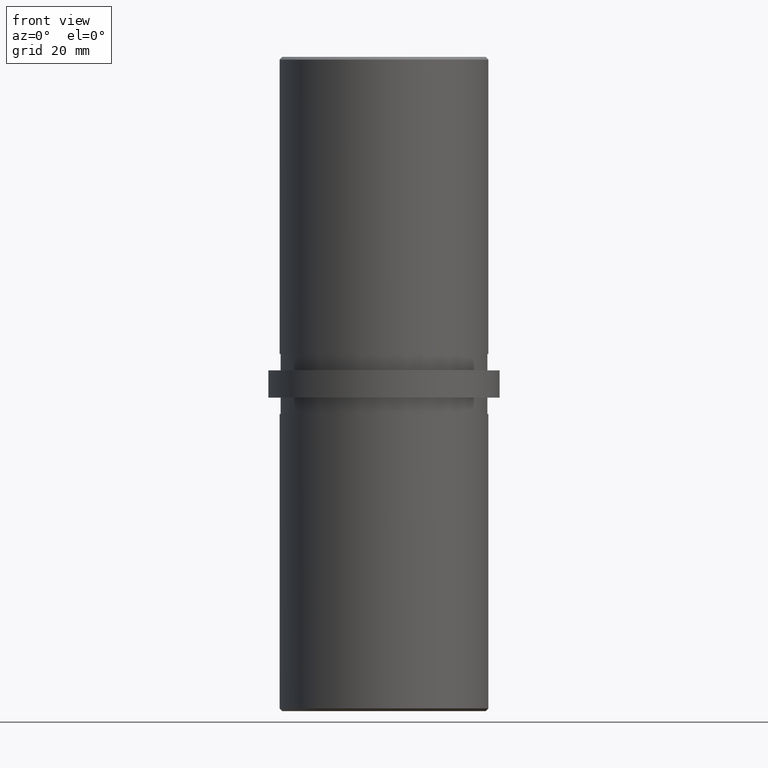
[diagram: clean part render]
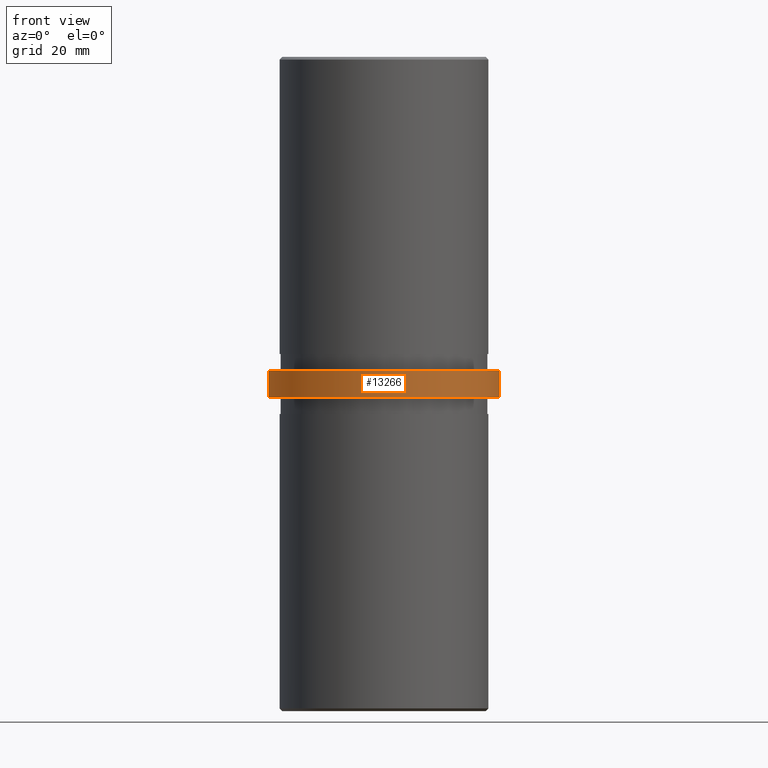
[diagram: same view with one face highlighted and labeled with its STEP entity id]
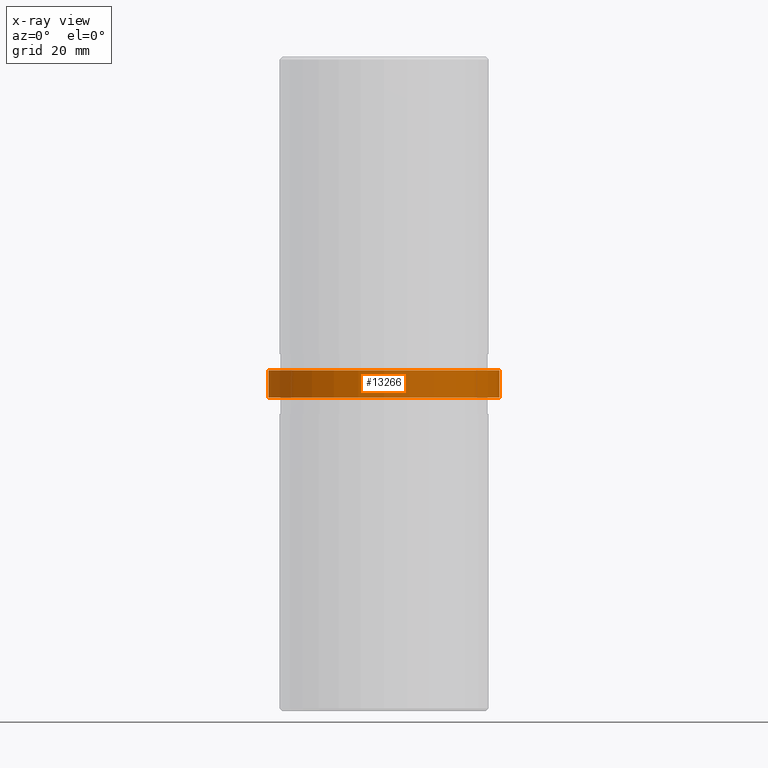
[diagram: x-ray of the same camera — body ghosted, the highlighted face saturated]
A machine part, front view. The second image highlights one B-rep face of the part: STEP entity #13266.
The next image is the same camera in x-ray: the body ghosted, the highlighted face saturated — about 0% of this face is hidden behind the body in this view.
In plain terms, the highlighted cylindrical surface (partial cylindrical patch) has radius 21.2 mm, axis along (-0, -0, -1).
Its self-contained STEP definition (entity closure, byte-faithful):
#784 = EDGE_LOOP ( 'NONE', ( #14013, #2978, #3122, #3936 ) ) ;
#1551 = CARTESIAN_POINT ( 'NONE',  ( 0.0000000000000000000, 0.0000000000000000000, -2.500000000000000000 ) ) ;
#2978 = ORIENTED_EDGE ( 'NONE', *, *, #4628, .F. ) ;
#3122 = ORIENTED_EDGE ( 'NONE', *, *, #5323, .T. ) ;
#3347 = FACE_OUTER_BOUND ( 'NONE', #784, .T. ) ;
#3936 = ORIENTED_EDGE ( 'NONE', *, *, #6485, .T. ) ;
#4132 = DIRECTION ( 'NONE',  ( 1.000000000000000000, 0.0000000000000000000, 0.0000000000000000000 ) ) ;
#4628 = EDGE_CURVE ( 'NONE', #16511, #20144, #21616, .T. ) ;
#4924 = DIRECTION ( 'NONE',  ( 1.000000000000000000, 0.0000000000000000000, 0.0000000000000000000 ) ) ;
#5323 = EDGE_CURVE ( 'NONE', #16511, #15430, #13612, .T. ) ;
#5388 = LINE ( 'NONE', #16420, #18393 ) ;
#6485 = EDGE_CURVE ( 'NONE', #15430, #18174, #11702, .T. ) ;
#7957 = DIRECTION ( 'NONE',  ( -0.0000000000000000000, -0.0000000000000000000, -1.000000000000000000 ) ) ;
#8242 = CARTESIAN_POINT ( 'NONE',  ( -21.19999999999999900, 0.0000000000000000000, -2.500000000000000000 ) ) ;
#9072 = VECTOR ( 'NONE', #15034, 1000.000000000000000 ) ;
#9180 = CARTESIAN_POINT ( 'NONE',  ( 21.19999999999999900, 2.596251214192388800E-015, 2.500000000000000000 ) ) ;
#10328 = EDGE_CURVE ( 'NONE', #20144, #18174, #5388, .T. ) ;
#10744 = AXIS2_PLACEMENT_3D ( 'NONE', #1551, #13386, #4924 ) ;
#11702 = CIRCLE ( 'NONE', #10744, 21.19999999999999900 ) ;
#12618 = DIRECTION ( 'NONE',  ( 0.0000000000000000000, 0.0000000000000000000, 1.000000000000000000 ) ) ;
#13266 = ADVANCED_FACE ( 'NONE', ( #3347 ), #20888, .T. ) ;
#13273 = CARTESIAN_POINT ( 'NONE',  ( 0.0000000000000000000, 0.0000000000000000000, 2.500000000000000000 ) ) ;
#13386 = DIRECTION ( 'NONE',  ( -0.0000000000000000000, -0.0000000000000000000, 1.000000000000000000 ) ) ;
#13612 = LINE ( 'NONE', #16619, #9072 ) ;
#13970 = CARTESIAN_POINT ( 'NONE',  ( 21.19999999999999900, 2.596251214192388800E-015, -2.500000000000000000 ) ) ;
#14013 = ORIENTED_EDGE ( 'NONE', *, *, #10328, .F. ) ;
#14374 = CARTESIAN_POINT ( 'NONE',  ( 0.0000000000000000000, 0.0000000000000000000, 2.500000000000000000 ) ) ;
#15034 = DIRECTION ( 'NONE',  ( -0.0000000000000000000, -0.0000000000000000000, -1.000000000000000000 ) ) ;
#15259 = DIRECTION ( 'NONE',  ( -0.0000000000000000000, -0.0000000000000000000, -1.000000000000000000 ) ) ;
#15430 = VERTEX_POINT ( 'NONE', #8242 ) ;
#15834 = DIRECTION ( 'NONE',  ( -1.000000000000000000, 0.0000000000000000000, 0.0000000000000000000 ) ) ;
#16420 = CARTESIAN_POINT ( 'NONE',  ( 21.19999999999999900, 2.596251214192388800E-015, 2.500000000000000000 ) ) ;
#16511 = VERTEX_POINT ( 'NONE', #17692 ) ;
#16619 = CARTESIAN_POINT ( 'NONE',  ( -21.19999999999999900, 0.0000000000000000000, 2.500000000000000000 ) ) ;
#17650 = AXIS2_PLACEMENT_3D ( 'NONE', #13273, #15259, #15834 ) ;
#17692 = CARTESIAN_POINT ( 'NONE',  ( -21.19999999999999900, 0.0000000000000000000, 2.500000000000000000 ) ) ;
#18174 = VERTEX_POINT ( 'NONE', #13970 ) ;
#18393 = VECTOR ( 'NONE', #7957, 1000.000000000000000 ) ;
#20144 = VERTEX_POINT ( 'NONE', #9180 ) ;
#20888 = CYLINDRICAL_SURFACE ( 'NONE', #17650, 21.19999999999999900 ) ;
#21107 = AXIS2_PLACEMENT_3D ( 'NONE', #14374, #12618, #4132 ) ;
#21616 = CIRCLE ( 'NONE', #21107, 21.19999999999999900 ) ;